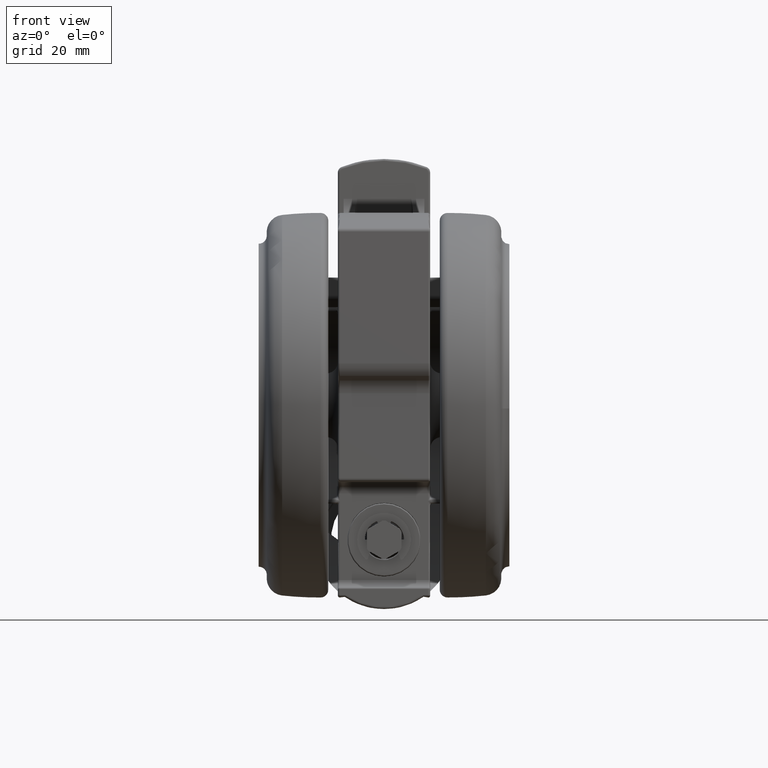
[diagram: clean part render]
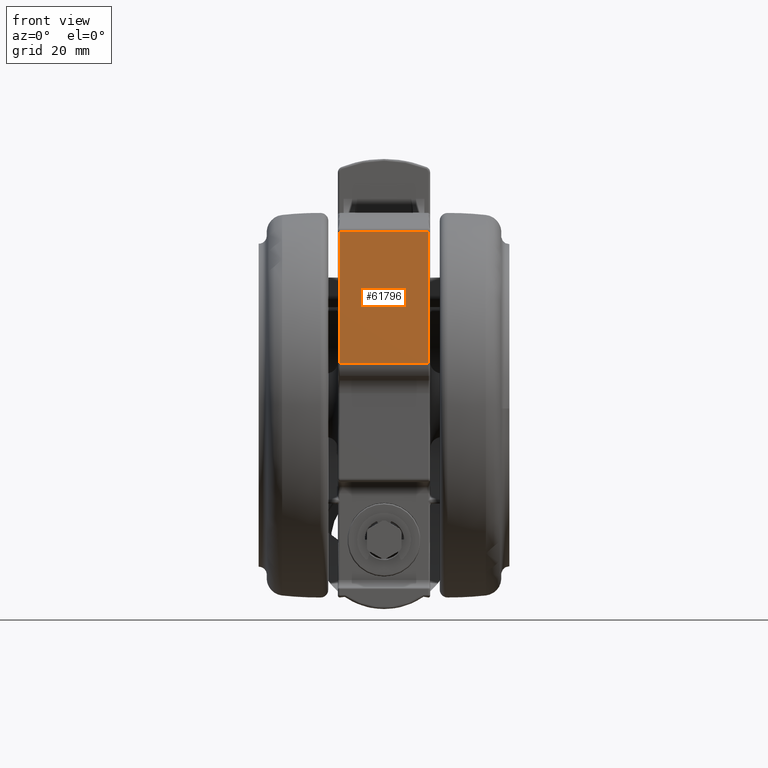
[diagram: same view with one face highlighted and labeled with its STEP entity id]
A machine part, front view. The second image highlights one B-rep face of the part: STEP entity #61796.
In plain terms, the highlighted planar face has unit normal (0, 1, -0).
Its self-contained STEP definition (entity closure, byte-faithful):
#1396 = ORIENTED_EDGE ( 'NONE', *, *, #5420, .T. ) ;
#1958 = DIRECTION ( 'NONE',  ( 0.0000000000000000000, -0.0000000000000000000, 1.000000000000000000 ) ) ;
#2748 = CARTESIAN_POINT ( 'NONE',  ( 19.77571737737511300, -11.28166813996125800, -21.09999999999991300 ) ) ;
#4603 = VERTEX_POINT ( 'NONE', #2748 ) ;
#5420 = EDGE_CURVE ( 'NONE', #4603, #53676, #28698, .T. ) ;
#6084 = DIRECTION ( 'NONE',  ( 0.02026128721468460300, 0.9997947190500677800, 0.0000000000000000000 ) ) ;
#6086 = EDGE_LOOP ( 'NONE', ( #54811, #1396, #28648, #63565 ) ) ;
#6904 = DIRECTION ( 'NONE',  ( -0.9997947190500678900, 0.02026128721468460600, 0.0000000000000000000 ) ) ;
#15959 = LINE ( 'NONE', #62121, #47555 ) ;
#17949 = EDGE_CURVE ( 'NONE', #53676, #67855, #15959, .T. ) ;
#19763 = VECTOR ( 'NONE', #1958, 1000.000000000000000 ) ;
#24922 = CARTESIAN_POINT ( 'NONE',  ( 19.06764452444216900, -46.22157553893412500, -44.09999999999991600 ) ) ;
#25759 = PLANE ( 'NONE',  #35347 ) ;
#26232 = VECTOR ( 'NONE', #6084, 1000.000000000000100 ) ;
#28648 = ORIENTED_EDGE ( 'NONE', *, *, #17949, .T. ) ;
#28698 = LINE ( 'NONE', #66214, #75064 ) ;
#29454 = CARTESIAN_POINT ( 'NONE',  ( 19.08100477239357300, -45.56231311372472700, -44.09999999999991600 ) ) ;
#30358 = EDGE_CURVE ( 'NONE', #67855, #45167, #61758, .T. ) ;
#33196 = CARTESIAN_POINT ( 'NONE',  ( 19.08100477239357300, -45.56231311372472700, -21.09999999999991300 ) ) ;
#35347 = AXIS2_PLACEMENT_3D ( 'NONE', #63539, #6904, #51143 ) ;
#39872 = CARTESIAN_POINT ( 'NONE',  ( 19.77571737737511300, -11.28166813996125800, -20.59999999999991300 ) ) ;
#41140 = DIRECTION ( 'NONE',  ( -0.02026128721468460300, -0.9997947190500677800, -0.0000000000000000000 ) ) ;
#45167 = VERTEX_POINT ( 'NONE', #73047 ) ;
#47555 = VECTOR ( 'NONE', #55781, 1000.000000000000000 ) ;
#51143 = DIRECTION ( 'NONE',  ( -0.02026128721468460300, -0.9997947190500677800, 0.0000000000000000000 ) ) ;
#51347 = LINE ( 'NONE', #39872, #19763 ) ;
#53676 = VERTEX_POINT ( 'NONE', #33196 ) ;
#54811 = ORIENTED_EDGE ( 'NONE', *, *, #57307, .T. ) ;
#55781 = DIRECTION ( 'NONE',  ( -0.0000000000000000000, 0.0000000000000000000, -1.000000000000000000 ) ) ;
#56322 = FACE_OUTER_BOUND ( 'NONE', #6086, .T. ) ;
#57307 = EDGE_CURVE ( 'NONE', #45167, #4603, #51347, .T. ) ;
#61758 = LINE ( 'NONE', #24922, #26232 ) ;
#61796 = ADVANCED_FACE ( 'NONE', ( #56322 ), #25759, .F. ) ;
#62121 = CARTESIAN_POINT ( 'NONE',  ( 19.08100477239357300, -45.56231311372472700, -20.59999999999991300 ) ) ;
#63539 = CARTESIAN_POINT ( 'NONE',  ( 19.06764452444216900, -46.22157553893412500, -20.59999999999991300 ) ) ;
#63565 = ORIENTED_EDGE ( 'NONE', *, *, #30358, .T. ) ;
#66214 = CARTESIAN_POINT ( 'NONE',  ( 19.08100477239357300, -45.56231311372472700, -21.09999999999991300 ) ) ;
#67855 = VERTEX_POINT ( 'NONE', #29454 ) ;
#73047 = CARTESIAN_POINT ( 'NONE',  ( 19.77571737737511300, -11.28166813996125800, -44.09999999999991600 ) ) ;
#75064 = VECTOR ( 'NONE', #41140, 1000.000000000000100 ) ;